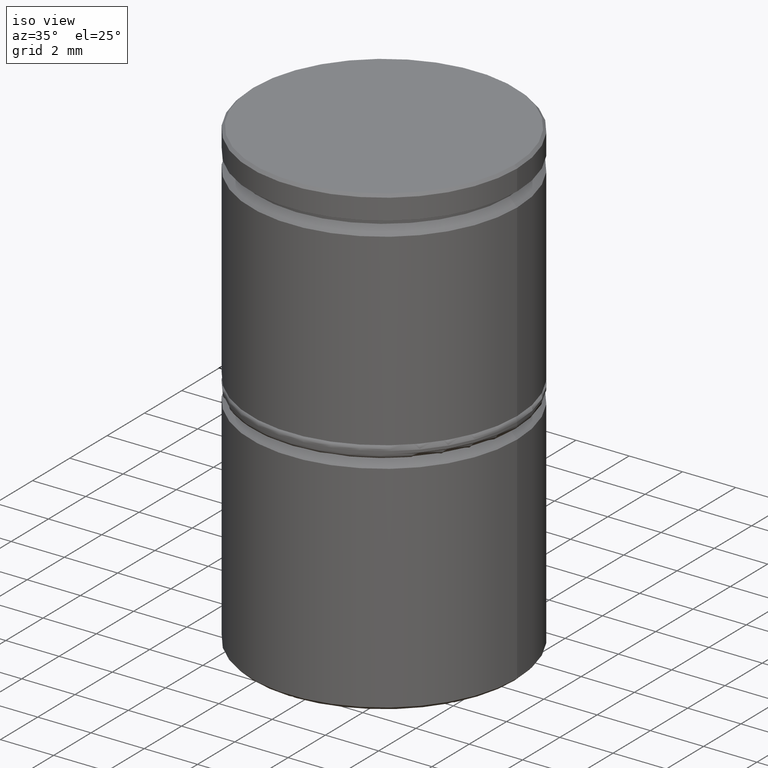
[diagram: clean part render]
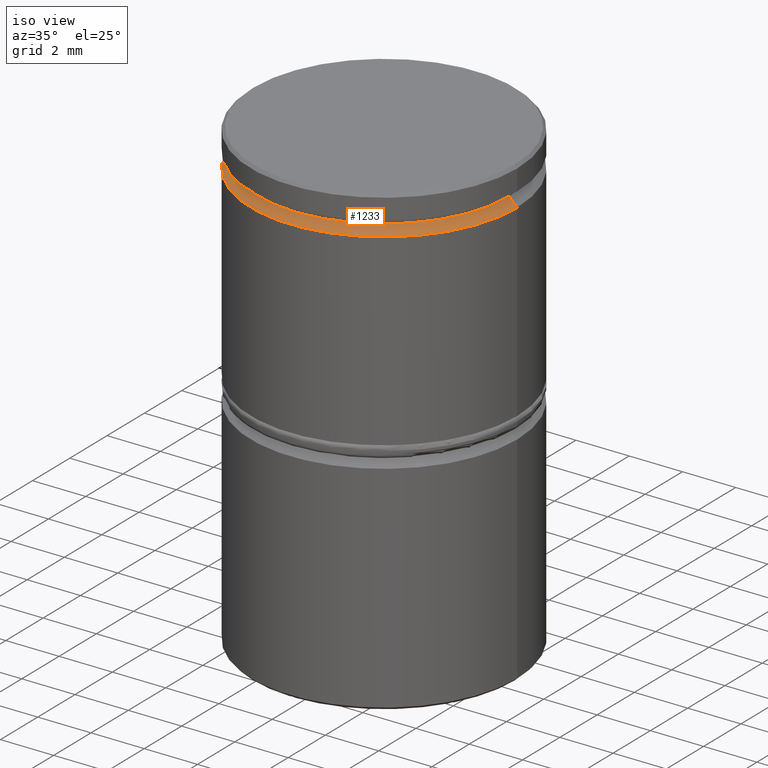
[diagram: same view with one face highlighted and labeled with its STEP entity id]
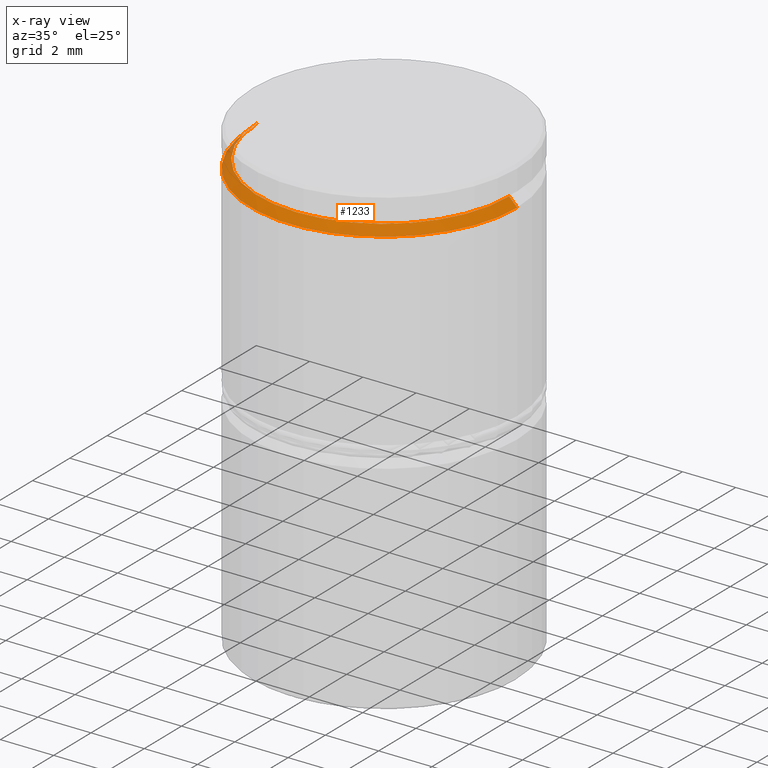
[diagram: x-ray of the same camera — body ghosted, the highlighted face saturated]
A machine part, iso view. The second image highlights one B-rep face of the part: STEP entity #1233.
The next image is the same camera in x-ray: the body ghosted, the highlighted face saturated — about 2% of this face is hidden behind the body in this view.
In plain terms, the highlighted conical surface has half-angle 45 deg.
Its self-contained STEP definition (entity closure, byte-faithful):
#1 = ORIENTED_EDGE ( 'NONE', *, *, #132, .F. ) ;
#33 = AXIS2_PLACEMENT_3D ( 'NONE', #922, #1136, #913 ) ;
#38 = VERTEX_POINT ( 'NONE', #1265 ) ;
#100 = CARTESIAN_POINT ( 'NONE',  ( 0.000000000000000000, 0.000000000000000000, -1.125000000000000222 ) ) ;
#132 = EDGE_CURVE ( 'NONE', #1154, #312, #182, .T. ) ;
#172 = VERTEX_POINT ( 'NONE', #326 ) ;
#182 = CIRCLE ( 'NONE', #1135, 4.700000000000000178 ) ;
#195 = CARTESIAN_POINT ( 'NONE',  ( -4.700000000000000178, 5.755839955992559655E-16, -1.125000000000000222 ) ) ;
#312 = VERTEX_POINT ( 'NONE', #437 ) ;
#316 = ORIENTED_EDGE ( 'NONE', *, *, #688, .F. ) ;
#326 = CARTESIAN_POINT ( 'NONE',  ( 5.000000000000000000, 0.000000000000000000, -1.424999999999994049 ) ) ;
#327 = LINE ( 'NONE', #1216, #1373 ) ;
#328 = CIRCLE ( 'NONE', #1256, 5.000000000000000000 ) ;
#370 = VECTOR ( 'NONE', #1316, 999.9999999999998863 ) ;
#379 = FACE_OUTER_BOUND ( 'NONE', #384, .T. ) ;
#384 = EDGE_LOOP ( 'NONE', ( #316, #1, #499, #1382 ) ) ;
#414 = CARTESIAN_POINT ( 'NONE',  ( 0.000000000000000000, 0.000000000000000000, -1.424999999999994049 ) ) ;
#437 = CARTESIAN_POINT ( 'NONE',  ( 4.700000000000000178, 0.000000000000000000, -1.125000000000000222 ) ) ;
#484 = CONICAL_SURFACE ( 'NONE', #33, 4.700000000000002842, 0.7853981633974540522 ) ;
#499 = ORIENTED_EDGE ( 'NONE', *, *, #784, .T. ) ;
#509 = DIRECTION ( 'NONE',  ( -0.000000000000000000, -0.000000000000000000, 1.000000000000000000 ) ) ;
#688 = EDGE_CURVE ( 'NONE', #312, #172, #873, .T. ) ;
#734 = EDGE_CURVE ( 'NONE', #172, #38, #328, .T. ) ;
#784 = EDGE_CURVE ( 'NONE', #1154, #38, #327, .T. ) ;
#873 = LINE ( 'NONE', #1344, #370 ) ;
#913 = DIRECTION ( 'NONE',  ( -1.000000000000000000, 0.000000000000000000, 0.000000000000000000 ) ) ;
#922 = CARTESIAN_POINT ( 'NONE',  ( 0.000000000000000000, 0.000000000000000000, -1.125000000000000222 ) ) ;
#936 = DIRECTION ( 'NONE',  ( 1.000000000000000000, 0.000000000000000000, 0.000000000000000000 ) ) ;
#1072 = DIRECTION ( 'NONE',  ( -0.7071067811865515695, 0.000000000000000000, -0.7071067811865435759 ) ) ;
#1135 = AXIS2_PLACEMENT_3D ( 'NONE', #100, #509, #936 ) ;
#1136 = DIRECTION ( 'NONE',  ( 0.000000000000000000, 0.000000000000000000, -1.000000000000000000 ) ) ;
#1154 = VERTEX_POINT ( 'NONE', #195 ) ;
#1170 = DIRECTION ( 'NONE',  ( 1.000000000000000000, 0.000000000000000000, 0.000000000000000000 ) ) ;
#1216 = CARTESIAN_POINT ( 'NONE',  ( -4.700000000000002842, 0.000000000000000000, -1.125000000000000222 ) ) ;
#1233 = ADVANCED_FACE ( 'NONE', ( #379 ), #484, .T. ) ;
#1256 = AXIS2_PLACEMENT_3D ( 'NONE', #414, #1285, #1170 ) ;
#1265 = CARTESIAN_POINT ( 'NONE',  ( -5.000000000000000000, 6.123233995736766282E-16, -1.424999999999994049 ) ) ;
#1285 = DIRECTION ( 'NONE',  ( 0.000000000000000000, 0.000000000000000000, -1.000000000000000000 ) ) ;
#1316 = DIRECTION ( 'NONE',  ( 0.7071067811865515695, 8.659560562354983395E-17, -0.7071067811865435759 ) ) ;
#1344 = CARTESIAN_POINT ( 'NONE',  ( 4.700000000000002842, 5.755839955992563599E-16, -1.125000000000000222 ) ) ;
#1373 = VECTOR ( 'NONE', #1072, 999.9999999999998863 ) ;
#1382 = ORIENTED_EDGE ( 'NONE', *, *, #734, .F. ) ;